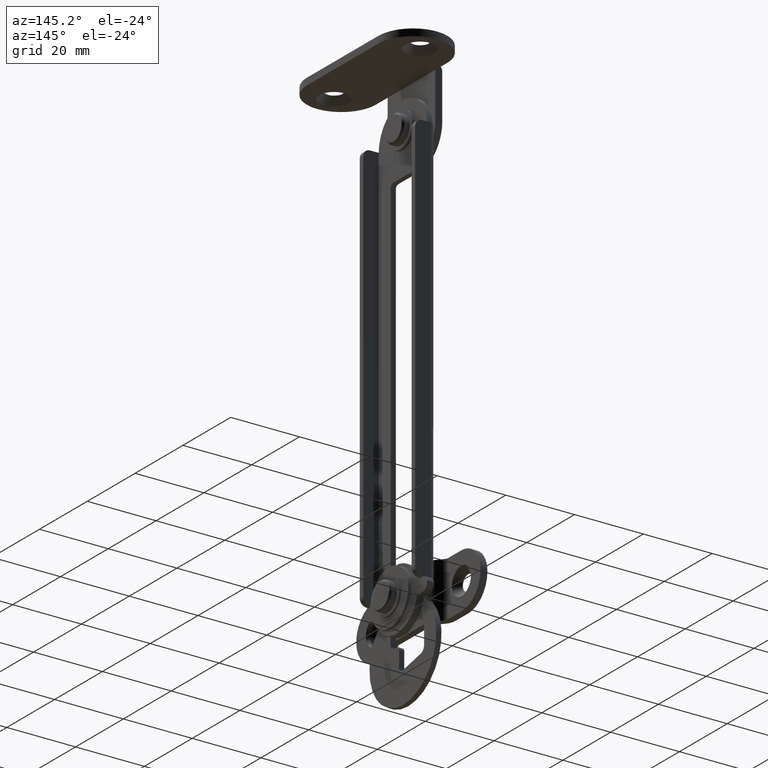
[diagram: clean part render]
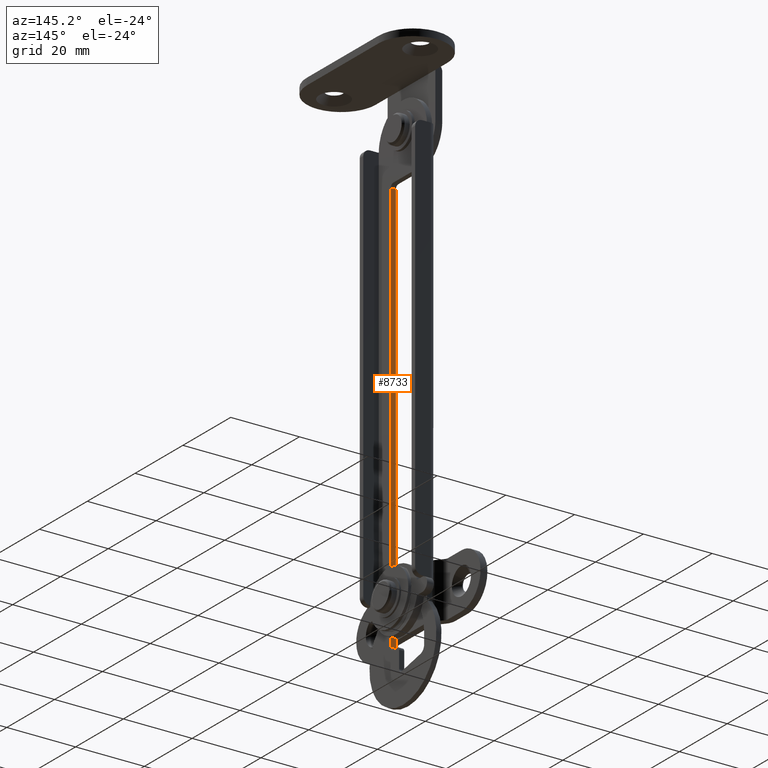
[diagram: same view with one face highlighted and labeled with its STEP entity id]
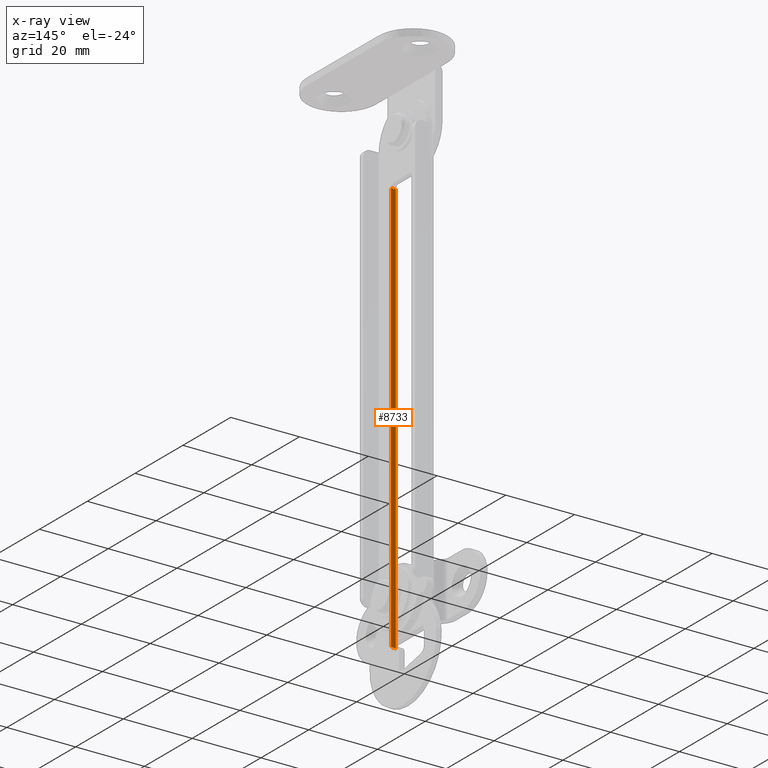
[diagram: x-ray of the same camera — body ghosted, the highlighted face saturated]
A machine part, auxiliary view. The second image highlights one B-rep face of the part: STEP entity #8733.
The next image is the same camera in x-ray: the body ghosted, the highlighted face saturated — about 0% of this face is hidden behind the body in this view.
In plain terms, the highlighted face is a freeform B-spline surface patch.
Its self-contained STEP definition (entity closure, byte-faithful):
#8219=CARTESIAN_POINT('',(5.0,-5.100007000000000,-13.0));
#8220=VERTEX_POINT('',#8219);
#8231=CARTESIAN_POINT('',(5.0,-5.100007000000000,-133.000014999999990));
#8232=VERTEX_POINT('',#8231);
#8233=CARTESIAN_POINT('',(5.0,-5.100007000000000,-133.000014999999990));
#8234=CARTESIAN_POINT('',(5.0,-5.100007000000000,-13.0));
#8235=QUASI_UNIFORM_CURVE('',1,(#8233,#8234),.UNSPECIFIED.,.F.,.U.);
#8236=EDGE_CURVE('',#8232,#8220,#8235,.T.);
#8692=CARTESIAN_POINT('',(6.500000000000000,-5.100006999999830,-13.0));
#8693=VERTEX_POINT('',#8692);
#8704=CARTESIAN_POINT('',(6.500000000000000,-5.100006999999830,-13.0));
#8705=CARTESIAN_POINT('',(5.0,-5.100007000000000,-13.0));
#8706=QUASI_UNIFORM_CURVE('',1,(#8704,#8705),.UNSPECIFIED.,.F.,.U.);
#8707=EDGE_CURVE('',#8693,#8220,#8706,.T.);
#8712=CARTESIAN_POINT('',(4.925075002907291,-5.100006999999830,-7.005999483333316));
#8713=CARTESIAN_POINT('',(4.925075002907291,-5.100006999999830,-138.994018735317890));
#8714=CARTESIAN_POINT('',(6.574925037325845,-5.100006999999830,-7.005999483333316));
#8715=CARTESIAN_POINT('',(6.574925037325845,-5.100006999999830,-138.994018735317890));
#8716=B_SPLINE_SURFACE_WITH_KNOTS('',1,1,((#8712,#8714),(#8713,#8715)),.UNSPECIFIED.,.F.,.F.,.U.,(2,2),(2,2),(0.0,131.988019251984610),(0.041708334948495,0.958291687403247),.UNSPECIFIED.);
#8717=ORIENTED_EDGE('',*,*,#8236,.T.);
#8718=ORIENTED_EDGE('',*,*,#8707,.F.);
#8719=CARTESIAN_POINT('',(6.500000000000000,-5.100007000000000,-133.000014999999990));
#8720=VERTEX_POINT('',#8719);
#8721=CARTESIAN_POINT('',(6.500000000000000,-5.100007000000000,-133.000014999999990));
#8722=CARTESIAN_POINT('',(6.500000000000000,-5.100006999999830,-13.0));
#8723=QUASI_UNIFORM_CURVE('',1,(#8721,#8722),.UNSPECIFIED.,.F.,.U.);
#8724=EDGE_CURVE('',#8720,#8693,#8723,.T.);
#8725=ORIENTED_EDGE('',*,*,#8724,.F.);
#8726=CARTESIAN_POINT('',(6.500000000000000,-5.100007000000000,-133.000014999999990));
#8727=CARTESIAN_POINT('',(5.0,-5.100007000000000,-133.000014999999990));
#8728=QUASI_UNIFORM_CURVE('',1,(#8726,#8727),.UNSPECIFIED.,.F.,.U.);
#8729=EDGE_CURVE('',#8720,#8232,#8728,.T.);
#8730=ORIENTED_EDGE('',*,*,#8729,.T.);
#8731=EDGE_LOOP('',(#8717,#8718,#8725,#8730));
#8732=FACE_OUTER_BOUND('',#8731,.T.);
#8733=ADVANCED_FACE('',(#8732),#8716,.F.);